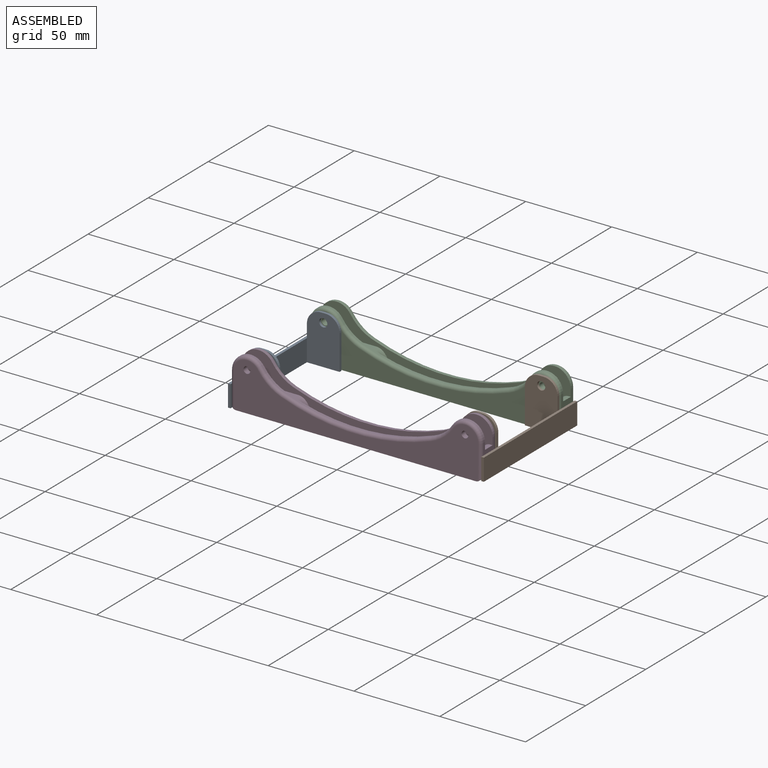
[diagram: assembled view]
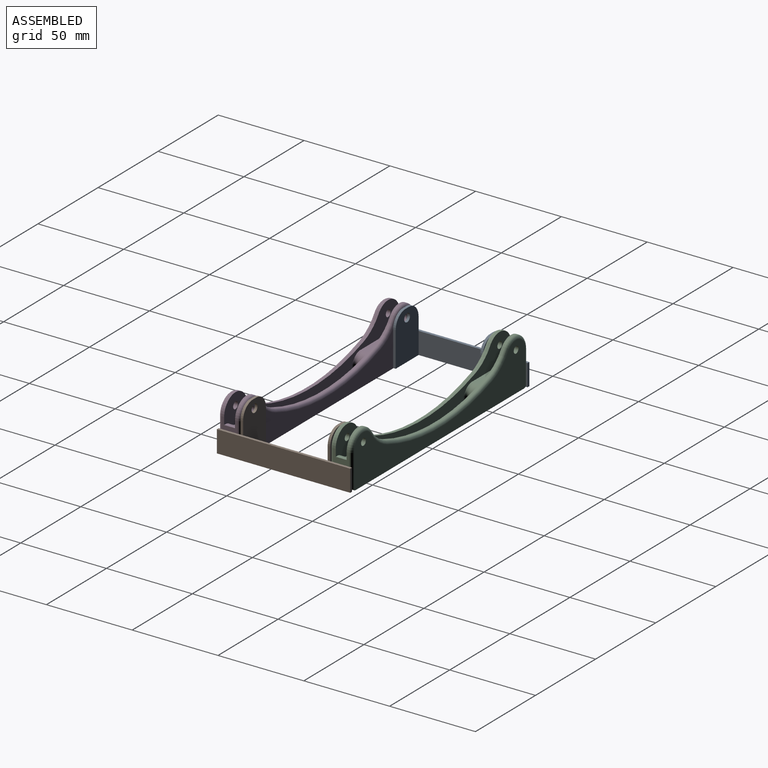
[diagram: assembled view, second angle]
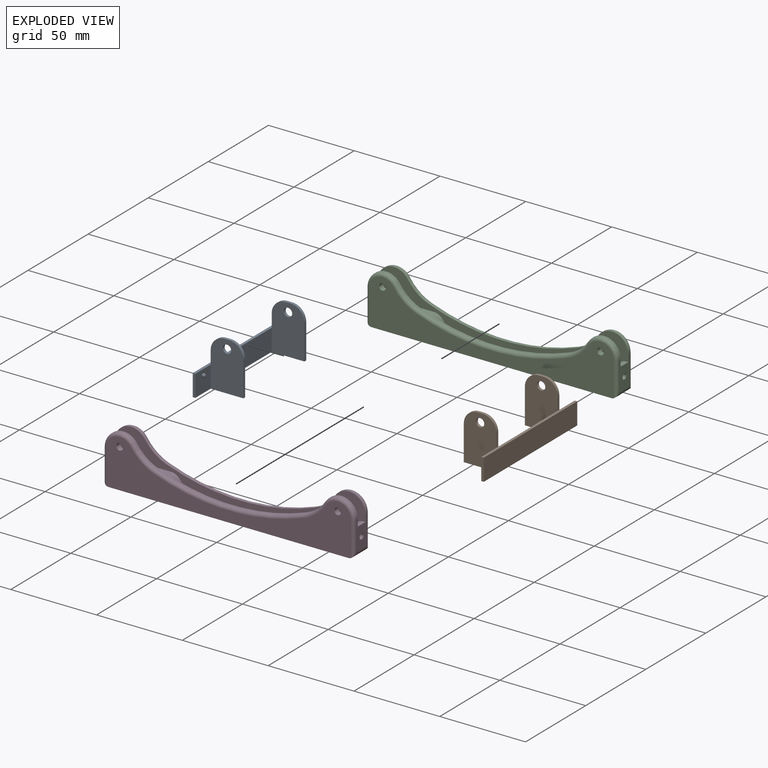
[diagram: exploded view]
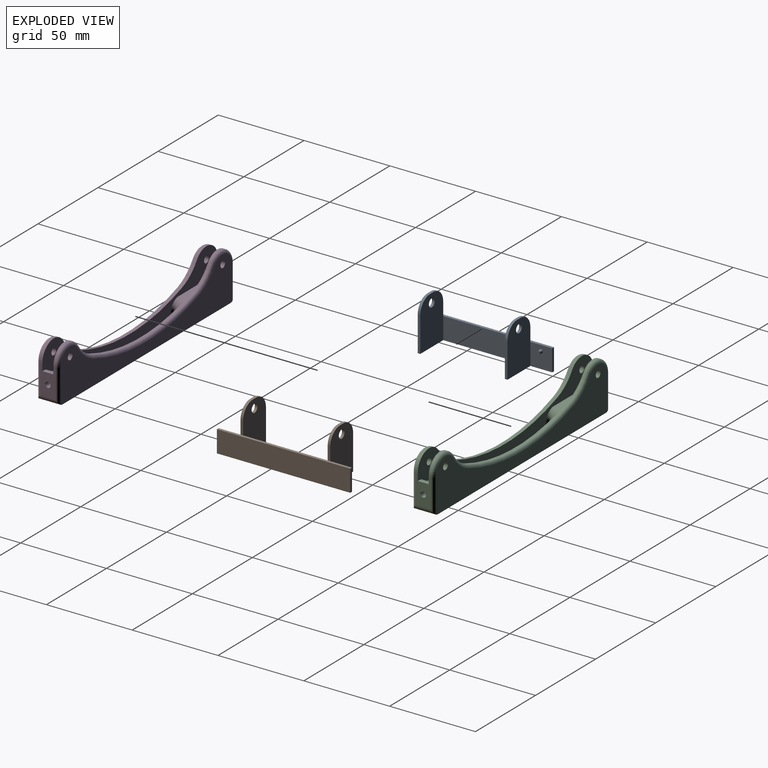
[diagram: exploded view, second angle]
ASSEMBLY  parts=4 mates=8
PART A: 30 faces, bbox 77.7x20.6x28.4 mm
  f0: plane 77.72x20.57mm, normal (0,0,-1), area 176.5mm2, adj f2,f3,f4,f7,f8,f10,f15,f16
  f1: plane 77.72x1.52mm, normal (0,0,1), area 118.5mm2, adj f2,f3,f4,f8,f9,f16,f17,f20
  f2: plane 12.7x1.52mm, normal (-1,0,0), area 19.4mm2, adj f0,f1,f3,f4
  f3: plane 77.72x12.7mm, normal (0,-1,0), area 987.1mm2, adj f0,f1,f2,f16
  f4: plane 12.7x12.7mm, normal (0,1,0), area 158mm2, adj f0,f1,f2,f5,f7
  f5: cylinder r=1.02mm len=2.03mm, axis (0,-1,0), area 4.9mm2, adj f4,f28
  f6: plane 0.51x0.51mm, normal (0,1,0), area 0.2mm2, adj f28
  f7: plane 28.45x19.05mm, normal (-1,0,0), area 495.3mm2, adj f0,f4,f9,f10,f11,f12,f13,f14
  f8: plane 49.28x12.7mm, normal (0,1,0), area 625.8mm2, adj f0,f1,f15,f26
  f9: plane 7.62x1.52mm, normal (0,-1,0), area 11.6mm2, adj f1,f7,f13,f15
  f10: plane 20.32x1.52mm, normal (0,1,0), area 31mm2, adj f0,f7,f11,f15
  f11: cylinder r=8.13mm len=8.13mm, axis (-1,0,0), area 19.5mm2, adj f7,f10,f12,f15
  f12: plane 2.79x1.52mm, normal (0,0,1), area 4.3mm2, adj f7,f11,f13,f15
  f13: cylinder r=8.13mm len=8.13mm, axis (-1,0,0), area 19.5mm2, adj f7,f9,f12,f15
  f14: cylinder r=2.41mm len=4.83mm, axis (-1,0,0), area 23.1mm2, adj f7,f15
  f15: plane 28.45x19.05mm, normal (1,0,0), area 495.3mm2, adj f0,f8,f9,f10,f11,f12,f13,f14
  f16: plane 12.7x1.52mm, normal (1,0,0), area 19.4mm2, adj f0,f1,f3,f17
  f17: plane 12.7x12.7mm, normal (0,1,0), area 158mm2, adj f0,f1,f16,f18,f27
  f18: cylinder r=1.02mm len=2.03mm, axis (0,-1,0), area 4.9mm2, adj f17,f29
  f19: plane 0.51x0.51mm, normal (0,1,0), area 0.2mm2, adj f29
  f20: plane 7.62x1.52mm, normal (0,-1,0), area 11.6mm2, adj f1,f24,f26,f27
  f21: plane 20.32x1.52mm, normal (0,1,0), area 31mm2, adj f0,f22,f26,f27
  f22: cylinder r=8.13mm len=8.13mm, axis (1,0,0), area 19.5mm2, adj f21,f23,f26,f27
  f23: plane 2.79x1.52mm, normal (0,0,1), area 4.3mm2, adj f22,f24,f26,f27
  f24: cylinder r=8.13mm len=8.13mm, axis (1,0,0), area 19.5mm2, adj f20,f23,f26,f27
  f25: cylinder r=2.41mm len=4.83mm, axis (1,0,0), area 23.1mm2, adj f26,f27
  f26: plane 28.45x19.05mm, normal (-1,0,0), area 495.3mm2, adj f0,f8,f20,f21,f22,f23,f24,f25
  f27: plane 28.45x19.05mm, normal (1,0,0), area 495.3mm2, adj f0,f17,f20,f21,f22,f23,f24,f25
  f28: torus R=0.25mm, axis (0,-1,0), area 5.6mm2, adj f5,f6
  f29: torus R=0.25mm, axis (0,-1,0), area 5.6mm2, adj f18,f19
PART B: same geometry as A
PART C: 63 faces, bbox 147.6x25.5x36.2 mm
  f0: cylinder r=25.4mm len=12.37mm, axis (0,1,0), area 22.5mm2, adj f2,f10,f29,f42
  f1: cylinder r=25.4mm len=12.37mm, axis (0,1,0), area 22.5mm2, adj f2,f11,f29,f43
  f2: cylinder r=124.01mm len=86.35mm, axis (0,1,0), area 123.2mm2, adj f0,f1,f29,f44
  f3: plane 7.27x2.29mm, normal (-1,0,0), area 16.6mm2, adj f6,f7,f18,f58
  f4: plane 7.27x2.29mm, normal (1,0,0), area 16.6mm2, adj f5,f8,f18,f61
  f5: cylinder r=2.03mm len=7.27mm, axis (0,0,-1), area 23.2mm2, adj f4,f18,f29,f62
  f6: cylinder r=2.03mm len=7.27mm, axis (0,0,1), area 23.2mm2, adj f3,f18,f29,f57
  f7: cylinder r=2.03mm len=7.27mm, axis (0,0,-1), area 23.2mm2, adj f3,f18,f28,f59
  f8: cylinder r=2.03mm len=7.27mm, axis (0,0,1), area 23.2mm2, adj f4,f18,f28,f60
  f9: plane 6.35x1.28mm, normal (0,0,1), area 8.1mm2, adj f16,f28,f29,f56
  f10: cylinder r=9.53mm len=17.48mm, axis (0,1,0), area 34.1mm2, adj f0,f16,f29,f40
  f11: cylinder r=9.53mm len=17.48mm, axis (0,1,0), area 34.1mm2, adj f1,f20,f29,f41
  f12: cylinder r=1.97mm len=3.94mm, axis (0,1,0), area 39.3mm2, adj f26,f29
  f13: cylinder r=1.97mm len=3.94mm, axis (0,1,0), area 39.3mm2, adj f26,f29
  f14: cylinder r=25.4mm len=12.37mm, axis (0,1,0), area 22.5mm2, adj f15,f24,f28,f35
  f15: cylinder r=9.53mm len=17.48mm, axis (0,1,0), area 34.1mm2, adj f14,f16,f28,f33
  f16: plane 17.15x9.14mm, normal (-1,0,0), area 121.8mm2, adj f9,f10,f15,f17,f28,f29,f31,f38
  f17: cylinder r=3.17mm len=12.7mm, axis (0,1,0), area 58.6mm2, adj f16,f18,f26,f27,f31,f38
  f18: plane 139.7x12.7mm, normal (0,0,-1), area 1328.1mm2, adj f3,f4,f5,f6,f7,f8,f17,f19
  f19: cylinder r=3.17mm len=12.7mm, axis (0,1,0), area 58.6mm2, adj f18,f20,f26,f27,f32,f39
  f20: plane 17.15x9.14mm, normal (1,0,0), area 122.5mm2, adj f11,f19,f21,f28,f29,f30,f32,f39
  f21: cylinder r=9.53mm len=17.48mm, axis (0,1,0), area 34.1mm2, adj f20,f22,f28,f34
  f22: cylinder r=25.4mm len=12.37mm, axis (0,1,0), area 22.5mm2, adj f21,f24,f28,f36
  f23: cylinder r=1.97mm len=3.94mm, axis (0,1,0), area 39.3mm2, adj f27,f28
  f24: cylinder r=124.01mm len=86.35mm, axis (0,1,0), area 123.2mm2, adj f14,f22,f28,f37
  f25: cylinder r=1.97mm len=3.94mm, axis (0,1,0), area 39.3mm2, adj f27,f28
  f26: plane 142.49x28.07mm, normal (0,-1,0), area 1983.1mm2, adj f12,f13,f17,f18,f19,f38,f39,f40
  f27: plane 142.49x28.07mm, normal (0,1,0), area 1983.1mm2, adj f17,f18,f19,f23,f25,f31,f32,f33
  f28: plane 146.05x29.85mm, normal (0,-1,0), area 1339.1mm2, adj f7,f8,f9,f14,f15,f16,f18,f20
  f29: plane 146.05x29.85mm, normal (0,1,0), area 1339.1mm2, adj f0,f1,f2,f5,f6,f9,f10,f11
  f30: plane 6.35x1.28mm, normal (0,0,1), area 8.1mm2, adj f20,f28,f29,f55
  f31: cylinder r=1.78mm len=20mm, axis (0,0,-1), area 52.4mm2, adj f16,f17,f27,f33
  f32: cylinder r=1.78mm len=20mm, axis (0,0,1), area 52.4mm2, adj f19,f20,f27,f34
  f33: torus R=7.75mm, axis (0,-1,0), area 63.5mm2, adj f15,f27,f31,f35
  f34: torus R=7.75mm, axis (0,-1,0), area 63.5mm2, adj f21,f27,f32,f36
  f35: torus R=27.18mm, axis (0,-1,0), area 46mm2, adj f14,f27,f33,f37
  f36: torus R=27.18mm, axis (0,-1,0), area 46mm2, adj f22,f27,f34,f37
  f37: torus R=125.79mm, axis (0,-1,0), area 247.6mm2, adj f24,f27,f35,f36
  f38: cylinder r=1.78mm len=20mm, axis (0,0,1), area 52.4mm2, adj f16,f17,f26,f40
  f39: cylinder r=1.78mm len=20mm, axis (0,0,-1), area 52.4mm2, adj f19,f20,f26,f41
  f40: torus R=7.75mm, axis (0,-1,0), area 63.5mm2, adj f10,f26,f38,f42
  f41: torus R=7.75mm, axis (0,-1,0), area 63.5mm2, adj f11,f26,f39,f43
  f42: torus R=27.18mm, axis (0,-1,0), area 46mm2, adj f0,f26,f40,f44
  f43: torus R=27.18mm, axis (0,-1,0), area 46mm2, adj f1,f26,f41,f44
  f44: torus R=125.79mm, axis (0,-1,0), area 247.6mm2, adj f2,f26,f42,f43
  f45: cylinder r=1.65mm len=6.35mm, axis (-1,0,0), area 65.9mm2, adj f16,f46
  f46: plane 3.3x3.3mm, normal (-1,0,0), area 8.6mm2, adj f45
  f47: cylinder r=1.59mm len=6.35mm, axis (1,0,0), area 63.3mm2, adj f20,f48
  f48: plane 3.18x3.18mm, normal (1,0,0), area 7.9mm2, adj f47
  f49: cylinder r=7.3mm len=6.6mm, axis (0,-1,0), area 44.9mm2, adj f28,f29,f54,f56
  f50: cylinder r=7.3mm len=6.6mm, axis (0,-1,0), area 44.9mm2, adj f28,f29,f53,f55
  f51: plane 17.31x6.35mm, normal (0,0,1), area 108.4mm2, adj f28,f29,f53,f57,f58,f59
  f52: plane 17.31x6.35mm, normal (0,0,1), area 108.4mm2, adj f28,f29,f54,f60,f61,f62
  f53: cylinder r=5.08mm len=6.35mm, axis (0,-1,0), area 28.6mm2, adj f28,f29,f50,f51
  f54: cylinder r=5.08mm len=6.35mm, axis (0,1,0), area 28.6mm2, adj f28,f29,f49,f52
  f55: cylinder r=5.08mm len=6.35mm, axis (0,-1,0), area 23.5mm2, adj f28,f29,f30,f50
  f56: cylinder r=5.08mm len=6.35mm, axis (0,-1,0), area 23.5mm2, adj f9,f28,f29,f49
  f57: torus R=7.11mm, axis (0,0,1), area 18.3mm2, adj f6,f29,f51,f58
  f58: cylinder r=5.08mm len=5.08mm, axis (0,-1,0), area 18.2mm2, adj f3,f51,f57,f59
  f59: torus R=7.11mm, axis (0,0,1), area 18.3mm2, adj f7,f28,f51,f58
  f60: torus R=7.11mm, axis (0,0,1), area 18.3mm2, adj f8,f28,f52,f61
  f61: cylinder r=5.08mm len=5.08mm, axis (0,-1,0), area 18.2mm2, adj f4,f52,f60,f62
  f62: torus R=7.11mm, axis (0,0,1), area 18.3mm2, adj f5,f29,f52,f61
PART D: same geometry as C
PLACE A rot(axis=(0,0,-1),90deg) t=(-78.03,38,-22.44)mm
PLACE B rot(axis=(0,0,1),90deg) t=(68.02,-14.32,-21.68)mm
PLACE C t=(-5,50.7,72.94)mm
PLACE D t=(-5,-14.32,72.28)mm fixed
MATE planar B.f7 <-> D.f27  axis (0,-1,0) through (58.5,-14.32,-14.85)mm
MATE planar D.f20 <-> B.f4  axis (1,0,0) through (68.02,-20.67,-18.5)mm
MATE planar A.f11 <-> D.f27  axis (0,-1,0) through (-67.11,-14.32,-8.47)mm
MATE revolute A.f18 <-> D.f45  axis (1,0,0) through (-78.03,-20.67,-19.26)mm
MATE planar C.f26 <-> B.f27  axis (0,-1,0) through (38.79,38,-14.26)mm
MATE cylindrical B.f18 <-> C.f47  axis (-1,0,0) through (68.02,44.35,-18.5)mm
MATE cylindrical B.f5 <-> D.f20  axis (-1,0,0) through (68.02,-20.67,-18.5)mm
MATE pin_slot B.f18 <-> C.f47  axis (-1,0,0) through (68.02,44.35,-18.5)mm
